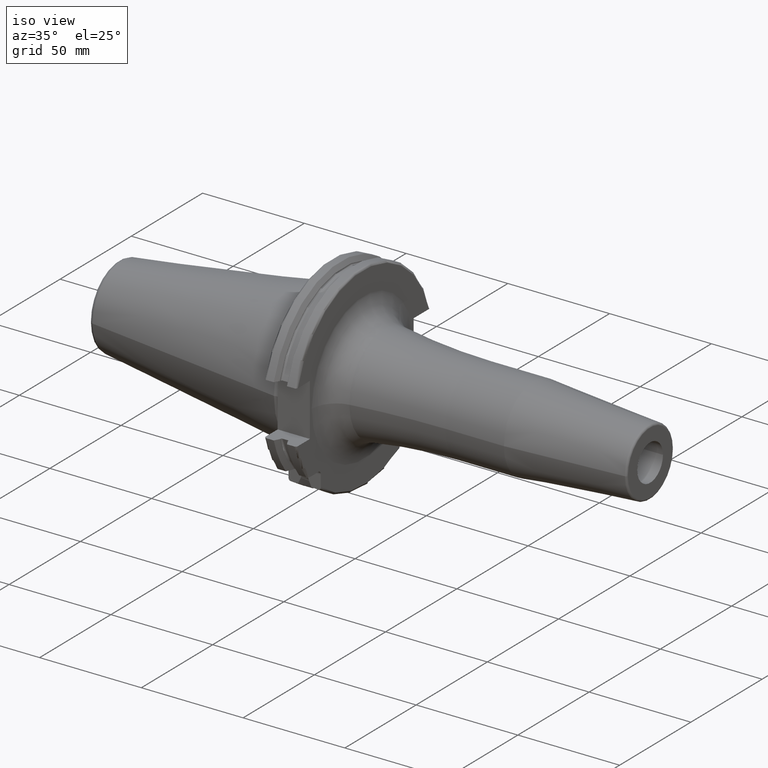
[diagram: clean part render]
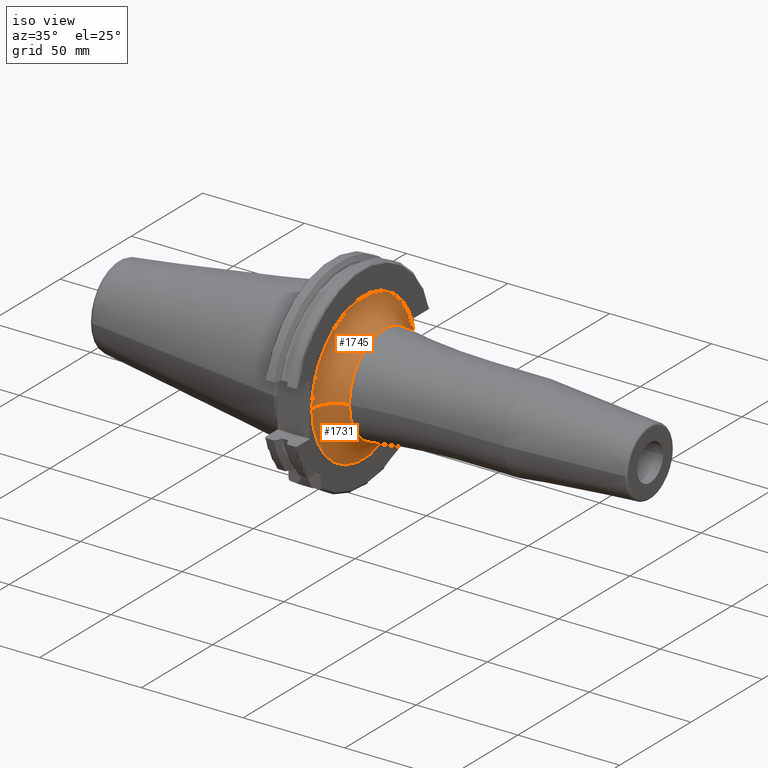
[diagram: same view with one multi-face feature highlighted, each face labeled with its STEP entity id]
A machine part, iso view. The highlighted faces form ONE feature: a constant-radius fillet chain: 2 tangent blend faces with common blend radius 12 mm. The faces share edges in the B-rep.
Their STEP definitions:
[1] entity #1745 (Torus):
#167=CARTESIAN_POINT('',(1.905E1,0.E0,0.E0));
#168=DIRECTION('',(1.E0,0.E0,0.E0));
#169=DIRECTION('',(0.E0,9.743845182936E-1,2.248884401426E-1));
#170=AXIS2_PLACEMENT_3D('',#167,#168,#169);
#172=CARTESIAN_POINT('',(3.105E1,-3.622816150469E1,7.055744877249E-12));
#173=DIRECTION('',(0.E0,-1.947591393714E-13,-1.E0));
#174=DIRECTION('',(-1.E0,1.539509260814E-14,0.E0));
#175=AXIS2_PLACEMENT_3D('',#172,#173,#174);
#184=CARTESIAN_POINT('',(1.908594900346E1,3.53E1,-1.007884227753E-3));
#185=CARTESIAN_POINT('',(1.908595101811E1,3.53E1,9.085267936662E-1));
#186=CARTESIAN_POINT('',(1.908018390653E1,3.529999416061E1,2.724881668984E0));
#187=CARTESIAN_POINT('',(1.906005609439E1,3.530002043786E1,5.443102223357E0));
#188=CARTESIAN_POINT('',(1.905E1,3.529995620459E1,7.247389793541E0));
#189=CARTESIAN_POINT('',(1.905E1,3.529995620459E1,8.147933436495E0));
#191=CARTESIAN_POINT('',(3.105E1,3.622816148992E1,-1.034385058507E-3));
#192=DIRECTION('',(0.E0,2.855196111382E-5,9.999999995924E-1));
#193=DIRECTION('',(-9.970042497121E-1,-7.734679082677E-2,2.208402564864E-6));
#194=AXIS2_PLACEMENT_3D('',#191,#192,#193);
#196=CARTESIAN_POINT('',(2.925833333333E1,0.E0,0.E0));
#197=DIRECTION('',(1.E0,0.E0,0.E0));
#198=DIRECTION('',(0.E0,1.E0,0.E0));
#199=AXIS2_PLACEMENT_3D('',#196,#197,#198);
#1490=CARTESIAN_POINT('',(1.905E1,-3.622816150469E1,-7.857457697077E-14));
#1492=VERTEX_POINT('',#1490);
#1494=CARTESIAN_POINT('',(2.925833333333E1,-2.436266823405E1,0.E0));
#1495=CARTESIAN_POINT('',(2.925833333333E1,2.436266823405E1,0.E0));
#1496=VERTEX_POINT('',#1494);
#1497=VERTEX_POINT('',#1495);
#1498=CARTESIAN_POINT('',(1.905E1,3.530015969641E1,8.147294730023E0));
#1499=VERTEX_POINT('',#1498);
#1504=CARTESIAN_POINT('',(1.908594900346E1,3.53E1,-1.007884227729E-3));
#1505=VERTEX_POINT('',#1504);
#1732=CARTESIAN_POINT('',(3.105E1,0.E0,0.E0));
#1733=DIRECTION('',(1.E0,0.E0,0.E0));
#1734=DIRECTION('',(0.E0,1.485959642860E-3,-9.999988959614E-1));
#1735=AXIS2_PLACEMENT_3D('',#1732,#1733,#1734);
#1736=TOROIDAL_SURFACE('',#1735,3.622816150469E1,1.2E1);
#1738=ORIENTED_EDGE('',*,*,#1737,.T.);
#1739=ORIENTED_EDGE('',*,*,#1722,.F.);
#1740=ORIENTED_EDGE('',*,*,#1711,.F.);
#1741=ORIENTED_EDGE('',*,*,#1662,.F.);
#1742=ORIENTED_EDGE('',*,*,#1726,.T.);
#1743=EDGE_LOOP('',(#1738,#1739,#1740,#1741,#1742));
#1744=FACE_OUTER_BOUND('',#1743,.F.);
#1745=ADVANCED_FACE('',(#1744),#1736,.F.);
#171=CIRCLE('',#170,3.622816150469E1);
#176=CIRCLE('',#175,1.2E1);
#190=B_SPLINE_CURVE_WITH_KNOTS('',3,(#184,#185,#186,#187,#188,#189),
.UNSPECIFIED.,.F.,.F.,(4,1,1,4),(0.E0,3.333333333333E-1,6.666666666667E-1,1.E0),
.UNSPECIFIED.);
#195=CIRCLE('',#194,1.2E1);
#200=CIRCLE('',#199,2.436266823405E1);
#1662=EDGE_CURVE('',#1505,#1499,#190,.T.);
#1711=EDGE_CURVE('',#1499,#1492,#171,.T.);
#1722=EDGE_CURVE('',#1492,#1496,#176,.T.);
#1726=EDGE_CURVE('',#1505,#1497,#195,.T.);
#1737=EDGE_CURVE('',#1497,#1496,#200,.T.);
[2] entity #1731 (Torus):
#126=CARTESIAN_POINT('',(1.905E1,0.E0,0.E0));
#127=DIRECTION('',(1.E0,0.E0,0.E0));
#128=DIRECTION('',(0.E0,-1.E0,0.E0));
#129=AXIS2_PLACEMENT_3D('',#126,#127,#128);
#172=CARTESIAN_POINT('',(3.105E1,-3.622816150469E1,7.055744877249E-12));
#173=DIRECTION('',(0.E0,-1.947591393714E-13,-1.E0));
#174=DIRECTION('',(-1.E0,1.539509260814E-14,0.E0));
#175=AXIS2_PLACEMENT_3D('',#172,#173,#174);
#177=CARTESIAN_POINT('',(1.905E1,3.529995736448E1,-8.147824865602E0));
#178=CARTESIAN_POINT('',(1.905E1,3.529995736448E1,-7.246694413872E0));
#179=CARTESIAN_POINT('',(1.906006627413E1,3.530001989658E1,-5.441934314714E0));
#180=CARTESIAN_POINT('',(1.908018453222E1,3.529999431526E1,-2.724432124638E0));
#181=CARTESIAN_POINT('',(1.908594699098E1,3.53E1,-9.095567570443E-1));
#182=CARTESIAN_POINT('',(1.908594900346E1,3.53E1,-1.007884227753E-3));
#191=CARTESIAN_POINT('',(3.105E1,3.622816148992E1,-1.034385058507E-3));
#192=DIRECTION('',(0.E0,2.855196111382E-5,9.999999995924E-1));
#193=DIRECTION('',(-9.970042497121E-1,-7.734679082677E-2,2.208402564864E-6));
#194=AXIS2_PLACEMENT_3D('',#191,#192,#193);
#201=CARTESIAN_POINT('',(2.925833333333E1,0.E0,0.E0));
#202=DIRECTION('',(1.E0,0.E0,0.E0));
#203=DIRECTION('',(0.E0,-1.E0,0.E0));
#204=AXIS2_PLACEMENT_3D('',#201,#202,#203);
#1490=CARTESIAN_POINT('',(1.905E1,-3.622816150469E1,-7.857457697077E-14));
#1491=CARTESIAN_POINT('',(1.905E1,3.530022776518E1,-8.146999799682E0));
#1492=VERTEX_POINT('',#1490);
#1493=VERTEX_POINT('',#1491);
#1494=CARTESIAN_POINT('',(2.925833333333E1,-2.436266823405E1,0.E0));
#1495=CARTESIAN_POINT('',(2.925833333333E1,2.436266823405E1,0.E0));
#1496=VERTEX_POINT('',#1494);
#1497=VERTEX_POINT('',#1495);
#1504=CARTESIAN_POINT('',(1.908594900346E1,3.53E1,-1.007884227729E-3));
#1505=VERTEX_POINT('',#1504);
#1716=CARTESIAN_POINT('',(3.105E1,0.E0,0.E0));
#1717=DIRECTION('',(1.E0,0.E0,0.E0));
#1718=DIRECTION('',(0.E0,-9.999761708853E-1,6.903452871557E-3));
#1719=AXIS2_PLACEMENT_3D('',#1716,#1717,#1718);
#1720=TOROIDAL_SURFACE('',#1719,3.622816150469E1,1.2E1);
#1721=ORIENTED_EDGE('',*,*,#1685,.F.);
#1723=ORIENTED_EDGE('',*,*,#1722,.T.);
#1725=ORIENTED_EDGE('',*,*,#1724,.T.);
#1727=ORIENTED_EDGE('',*,*,#1726,.F.);
#1728=ORIENTED_EDGE('',*,*,#1660,.F.);
#1729=EDGE_LOOP('',(#1721,#1723,#1725,#1727,#1728));
#1730=FACE_OUTER_BOUND('',#1729,.F.);
#1731=ADVANCED_FACE('',(#1730),#1720,.F.);
#130=CIRCLE('',#129,3.622816150469E1);
#176=CIRCLE('',#175,1.2E1);
#183=B_SPLINE_CURVE_WITH_KNOTS('',3,(#177,#178,#179,#180,#181,#182),
.UNSPECIFIED.,.F.,.F.,(4,1,1,4),(0.E0,3.333333333333E-1,6.666666666667E-1,1.E0),
.UNSPECIFIED.);
#195=CIRCLE('',#194,1.2E1);
#205=CIRCLE('',#204,2.436266823405E1);
#1660=EDGE_CURVE('',#1493,#1505,#183,.T.);
#1685=EDGE_CURVE('',#1492,#1493,#130,.T.);
#1722=EDGE_CURVE('',#1492,#1496,#176,.T.);
#1724=EDGE_CURVE('',#1496,#1497,#205,.T.);
#1726=EDGE_CURVE('',#1505,#1497,#195,.T.);